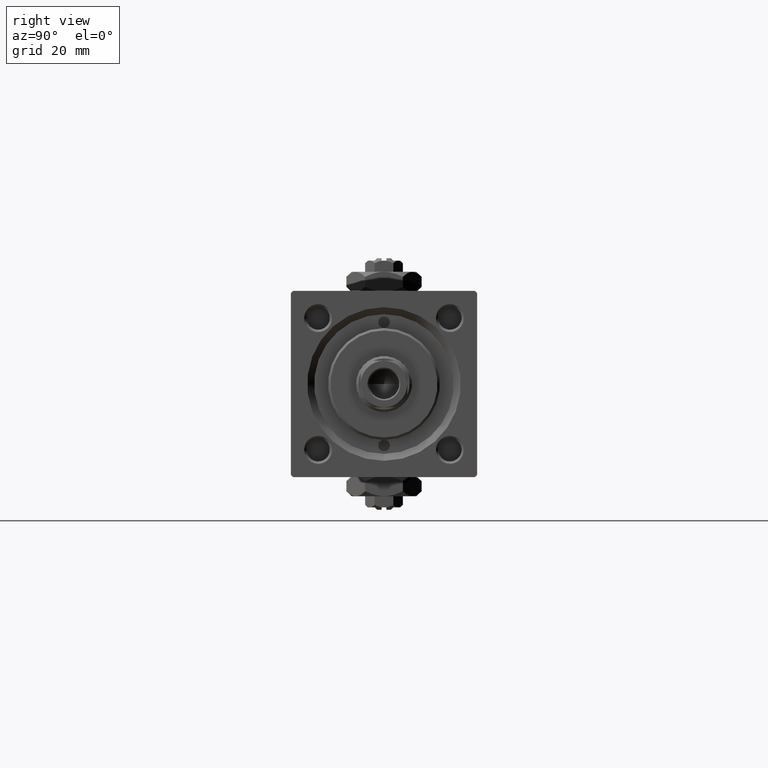
[diagram: clean part render]
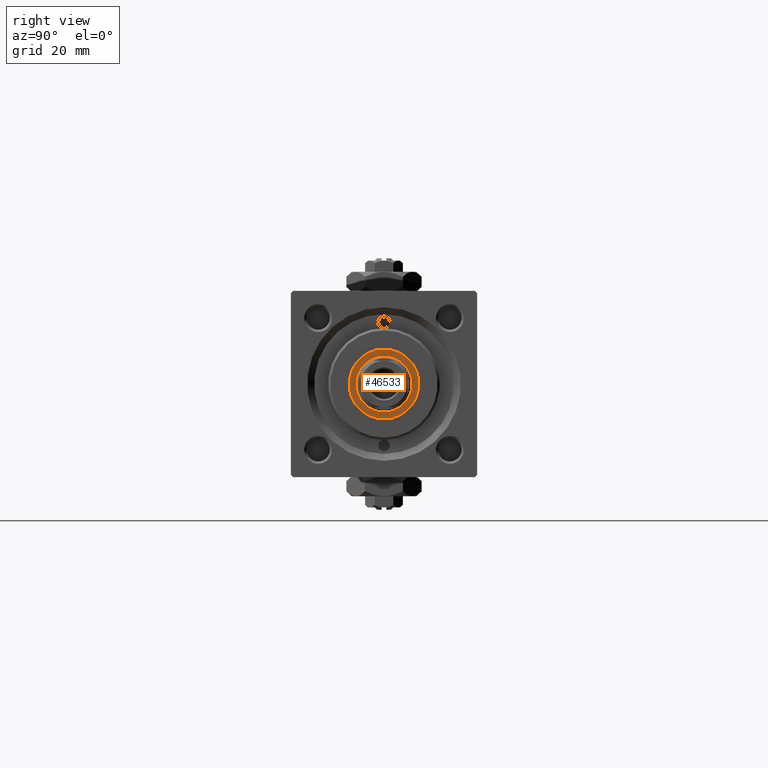
[diagram: same view with one face highlighted and labeled with its STEP entity id]
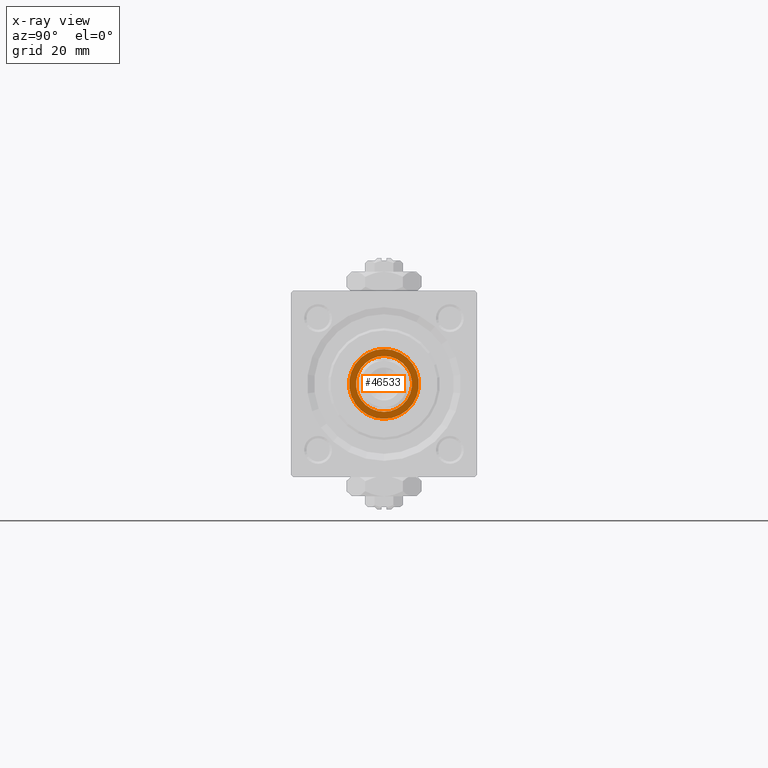
[diagram: x-ray of the same camera — body ghosted, the highlighted face saturated]
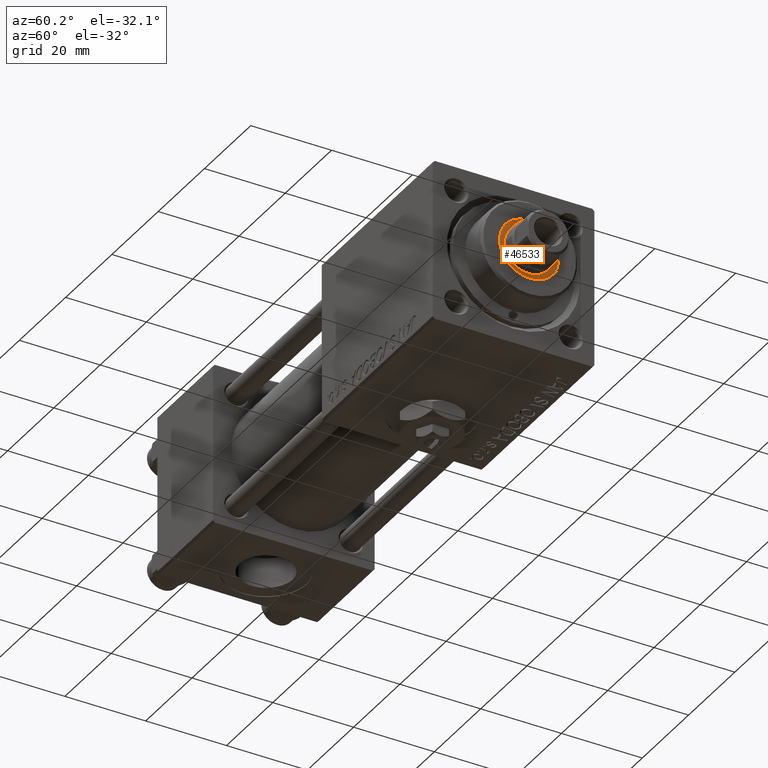
[diagram: same view with one face highlighted and labeled with its STEP entity id]
A machine part, right view. The second image highlights one B-rep face of the part: STEP entity #46533.
The next image is the same camera in x-ray: the body ghosted, the highlighted face saturated — about 0% of this face is hidden behind the body in this view.
A second angle (auxiliary view) of the same face is appended — the face is thin or edge-on in the first view.
In plain terms, the highlighted planar face has unit normal (1, 0, 0).
Its self-contained STEP definition (entity closure, byte-faithful):
#1867 = CARTESIAN_POINT ( 'NONE',  ( 0.000000000000000000, 0.000000000000000000, 35.20000000000000284 ) ) ;
#3122 = DIRECTION ( 'NONE',  ( -0.000000000000000000, -0.000000000000000000, -1.000000000000000000 ) ) ;
#4064 = FACE_OUTER_BOUND ( 'NONE', #30787, .T. ) ;
#5573 = DIRECTION ( 'NONE',  ( 0.000000000000000000, 0.000000000000000000, 1.000000000000000000 ) ) ;
#6002 = CARTESIAN_POINT ( 'NONE',  ( 7.500000000000000888, 0.000000000000000000, 35.20000000000000284 ) ) ;
#11196 = DIRECTION ( 'NONE',  ( 1.000000000000000000, 0.000000000000000000, 0.000000000000000000 ) ) ;
#13584 = DIRECTION ( 'NONE',  ( 1.000000000000000000, 0.000000000000000000, 0.000000000000000000 ) ) ;
#13854 = ORIENTED_EDGE ( 'NONE', *, *, #27083, .T. ) ;
#14724 = VERTEX_POINT ( 'NONE', #19282 ) ;
#16122 = AXIS2_PLACEMENT_3D ( 'NONE', #42969, #31298, #11196 ) ;
#16239 = ORIENTED_EDGE ( 'NONE', *, *, #20016, .T. ) ;
#19282 = CARTESIAN_POINT ( 'NONE',  ( -6.000000000000000888, 7.347880794884119736E-16, 35.20000000000000284 ) ) ;
#20016 = EDGE_CURVE ( 'NONE', #14724, #26505, #45297, .T. ) ;
#21638 = CIRCLE ( 'NONE', #33483, 6.000000000000000888 ) ;
#21652 = DIRECTION ( 'NONE',  ( 1.000000000000000000, 0.000000000000000000, 0.000000000000000000 ) ) ;
#21765 = CARTESIAN_POINT ( 'NONE',  ( 0.000000000000000000, 0.000000000000000000, 35.20000000000000284 ) ) ;
#23168 = CARTESIAN_POINT ( 'NONE',  ( 0.000000000000000000, 0.000000000000000000, 35.20000000000000284 ) ) ;
#23250 = AXIS2_PLACEMENT_3D ( 'NONE', #21765, #26531, #13584 ) ;
#24447 = ORIENTED_EDGE ( 'NONE', *, *, #49139, .T. ) ;
#25283 = CIRCLE ( 'NONE', #37165, 7.500000000000000888 ) ;
#26505 = VERTEX_POINT ( 'NONE', #37740 ) ;
#26531 = DIRECTION ( 'NONE',  ( -0.000000000000000000, -0.000000000000000000, -1.000000000000000000 ) ) ;
#27083 = EDGE_CURVE ( 'NONE', #49897, #46400, #25283, .T. ) ;
#27159 = AXIS2_PLACEMENT_3D ( 'NONE', #27840, #28362, #40032 ) ;
#27567 = FACE_BOUND ( 'NONE', #38549, .T. ) ;
#27840 = CARTESIAN_POINT ( 'NONE',  ( 0.000000000000000000, 0.000000000000000000, 35.20000000000000284 ) ) ;
#28362 = DIRECTION ( 'NONE',  ( 0.000000000000000000, 0.000000000000000000, 1.000000000000000000 ) ) ;
#29491 = CARTESIAN_POINT ( 'NONE',  ( -7.500000000000000888, 9.184850993605149917E-16, 35.20000000000000284 ) ) ;
#30787 = EDGE_LOOP ( 'NONE', ( #24447, #13854 ) ) ;
#31298 = DIRECTION ( 'NONE',  ( 0.000000000000000000, 0.000000000000000000, 1.000000000000000000 ) ) ;
#31803 = PLANE ( 'NONE',  #27159 ) ;
#31918 = DIRECTION ( 'NONE',  ( 1.000000000000000000, 0.000000000000000000, 0.000000000000000000 ) ) ;
#33483 = AXIS2_PLACEMENT_3D ( 'NONE', #23168, #3122, #31918 ) ;
#35348 = EDGE_CURVE ( 'NONE', #26505, #14724, #21638, .T. ) ;
#36966 = ORIENTED_EDGE ( 'NONE', *, *, #35348, .T. ) ;
#37165 = AXIS2_PLACEMENT_3D ( 'NONE', #1867, #5573, #21652 ) ;
#37740 = CARTESIAN_POINT ( 'NONE',  ( 6.000000000000000888, 0.000000000000000000, 35.20000000000000284 ) ) ;
#38549 = EDGE_LOOP ( 'NONE', ( #36966, #16239 ) ) ;
#40032 = DIRECTION ( 'NONE',  ( 1.000000000000000000, 0.000000000000000000, -0.000000000000000000 ) ) ;
#42969 = CARTESIAN_POINT ( 'NONE',  ( 0.000000000000000000, 0.000000000000000000, 35.20000000000000284 ) ) ;
#45297 = CIRCLE ( 'NONE', #23250, 6.000000000000000888 ) ;
#46400 = VERTEX_POINT ( 'NONE', #6002 ) ;
#46533 = ADVANCED_FACE ( 'NONE', ( #4064, #27567 ), #31803, .T. ) ;
#49092 = CIRCLE ( 'NONE', #16122, 7.500000000000000888 ) ;
#49139 = EDGE_CURVE ( 'NONE', #46400, #49897, #49092, .T. ) ;
#49897 = VERTEX_POINT ( 'NONE', #29491 ) ;